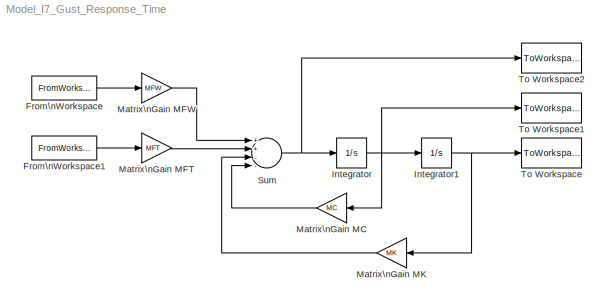
MODEL Model_I7_Gust_Response_Time
KIND model
BLOCK [FromWorkspace] From\nWorkspace
  SampleTime = dt
  VariableName = inW
BLOCK [FromWorkspace] From\nWorkspace1
  SampleTime = dt
  VariableName = inT
BLOCK [Integrator] Integrator
  IgnoreLimit = off
  Ports = [1, 1]
BLOCK [Integrator] Integrator1
  IgnoreLimit = off
  Ports = [1, 1]
BLOCK [Gain] Matrix\nGain MC
  Gain = MC
  Multiplication = Matrix(K*u)
  SampleTime = dt
BLOCK [Gain] Matrix\nGain MFT
  Gain = MFT
  Multiplication = Matrix(K*u)
  SampleTime = dt
BLOCK [Gain] Matrix\nGain MFW
  Gain = MFW
  Multiplication = Matrix(K*u)
  SampleTime = dt
BLOCK [Gain] Matrix\nGain MK
  Gain = MK
  Multiplication = Matrix(K*u)
  SampleTime = dt
BLOCK [Sum] Sum
  InputSameDT = off
  Inputs = ++--
  OutDataTypeMode = Inherit via internal rule
  Ports = [4, 1]
BLOCK [ToWorkspace] To Workspace
  MaxDataPoints = inf
  SampleTime = dt
  SaveFormat = Array
  VariableName = out_disp
BLOCK [ToWorkspace] To Workspace1
  MaxDataPoints = inf
  SampleTime = dt
  SaveFormat = Array
  VariableName = out_rate
BLOCK [ToWorkspace] To Workspace2
  MaxDataPoints = inf
  SampleTime = dt
  SaveFormat = Array
  VariableName = out_acc
LINE From\nWorkspace1:1 -> Matrix\nGain MFT:1
LINE From\nWorkspace:1 -> Matrix\nGain MFW:1
NET Integrator1:1 -> Matrix\nGain MK:1, To Workspace:1
NET Integrator:1 -> Integrator1:1, Matrix\nGain MC:1, To Workspace1:1
LINE Matrix\nGain MC:1 -> Sum:4
LINE Matrix\nGain MFT:1 -> Sum:2
LINE Matrix\nGain MFW:1 -> Sum:1
LINE Matrix\nGain MK:1 -> Sum:3
NET Sum:1 -> Integrator:1, To Workspace2:1
note: NET lines group one-source signal fan-out (src -> all destinations, sorted); 1:1 wires keep LINE
